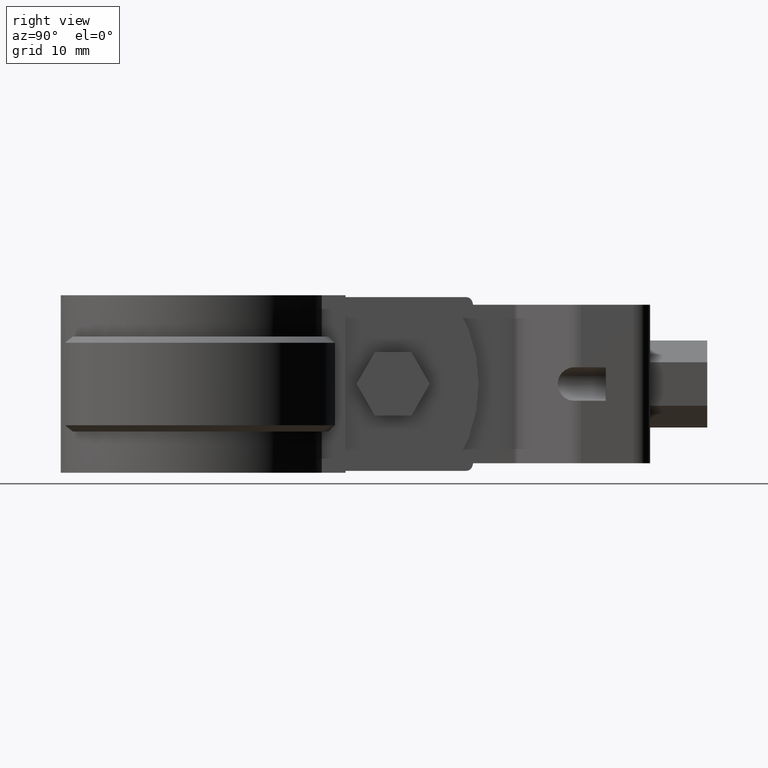
[diagram: clean part render]
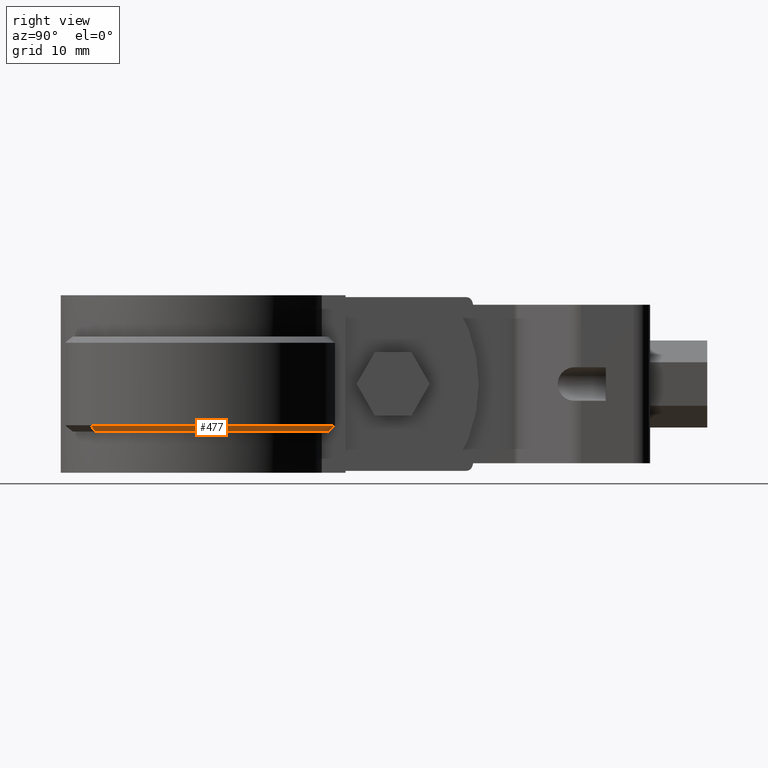
[diagram: same view with one face highlighted and labeled with its STEP entity id]
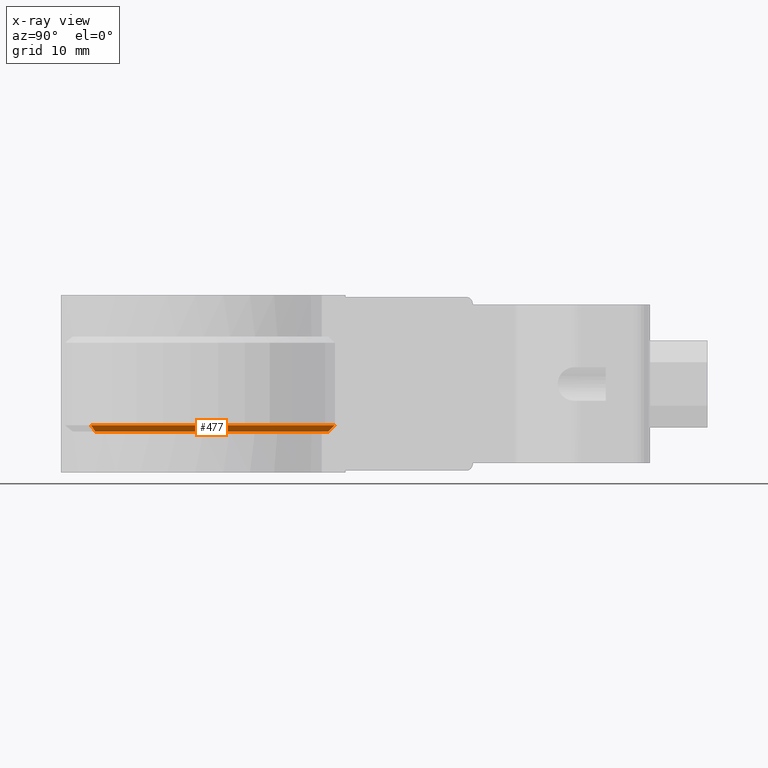
[diagram: x-ray of the same camera — body ghosted, the highlighted face saturated]
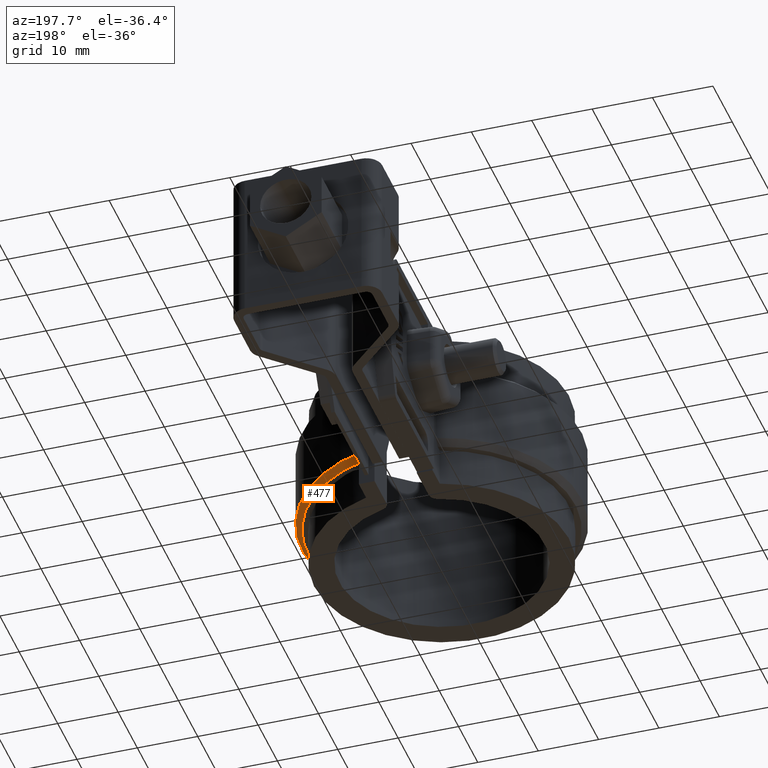
[diagram: same view with one face highlighted and labeled with its STEP entity id]
A machine part, right view. The second image highlights one B-rep face of the part: STEP entity #477.
The next image is the same camera in x-ray: the body ghosted, the highlighted face saturated — about 0% of this face is hidden behind the body in this view.
A second angle (auxiliary view) of the same face is appended — the face is thin or edge-on in the first view.
In plain terms, the highlighted conical surface has half-angle 45 deg.
Its self-contained STEP definition (entity closure, byte-faithful):
#477 = ADVANCED_FACE( '', ( #931 ), #932, .T. );
#931 = FACE_OUTER_BOUND( '', #2024, .T. );
#932 = CONICAL_SURFACE( '', #2025, 22.0950000000000, 0.785398163397448 );
#2024 = EDGE_LOOP( '', ( #4556, #4557, #4558, #4559 ) );
#2025 = AXIS2_PLACEMENT_3D( '', #4560, #4561, #4562 );
#4556 = ORIENTED_EDGE( '', *, *, #6706, .F. );
#4557 = ORIENTED_EDGE( '', *, *, #6644, .F. );
#4558 = ORIENTED_EDGE( '', *, *, #6713, .F. );
#4559 = ORIENTED_EDGE( '', *, *, #6674, .F. );
#4560 = CARTESIAN_POINT( '', ( -8.67361737988404E-016, -6.93889390390723E-015, -20.0000000000000 ) );
#4561 = DIRECTION( '', ( 0.000000000000000, 0.000000000000000, 1.00000000000000 ) );
#4562 = DIRECTION( '', ( 1.00000000000000, 0.000000000000000, 0.000000000000000 ) );
#6644 = EDGE_CURVE( '', #7773, #7768, #7775, .T. );
#6674 = EDGE_CURVE( '', #7823, #7824, #7825, .F. );
#6706 = EDGE_CURVE( '', #7768, #7823, #7864, .F. );
#6713 = EDGE_CURVE( '', #7824, #7773, #7872, .T. );
#7768 = VERTEX_POINT( '', #10865 );
#7773 = VERTEX_POINT( '', #10871 );
#7775 = CIRCLE( '', #10874, 23.0950000000000 );
#7823 = VERTEX_POINT( '', #10947 );
#7824 = VERTEX_POINT( '', #10948 );
#7825 = CIRCLE( '', #10949, 22.0950000000000 );
#7864 = B_SPLINE_CURVE_WITH_KNOTS( '', 3, ( #11049, #11050, #11051, #11052 ), .UNSPECIFIED., .F., .F., ( 4, 4 ), ( 707.130334014854, 707.131788933457 ), .UNSPECIFIED. );
#7872 = LINE( '', #11067, #11068 );
#10865 = CARTESIAN_POINT( '', ( 6.09999999999997, 22.2748518513592, -19.0000000000000 ) );
#10871 = CARTESIAN_POINT( '', ( 16.4128629004502, -16.2479831490258, -19.0000000000000 ) );
#10874 = AXIS2_PLACEMENT_3D( '', #12837, #12838, #12839 );
#10947 = CARTESIAN_POINT( '', ( 6.09999999999997, 21.2362667387656, -20.0000000000000 ) );
#10948 = CARTESIAN_POINT( '', ( 15.7021955308702, -15.5444549763033, -20.0000000000000 ) );
#10949 = AXIS2_PLACEMENT_3D( '', #12886, #12887, #12888 );
#11049 = CARTESIAN_POINT( '', ( 6.09999999999997, 21.2362667387874, -19.9999999999790 ) );
#11050 = CARTESIAN_POINT( '', ( 6.09999999999997, 21.5827481550315, -19.6669847578253 ) );
#11051 = CARTESIAN_POINT( '', ( 6.09999999999997, 21.9289303497818, -19.3336371595513 ) );
#11052 = CARTESIAN_POINT( '', ( 6.09999999999997, 22.2748518513811, -18.9999999999789 ) );
#11067 = CARTESIAN_POINT( '', ( 15.7021955308702, -15.5444549763033, -20.0000000000000 ) );
#11068 = VECTOR( '', #12946, 1000.00000000000 );
#12837 = CARTESIAN_POINT( '', ( -8.67361737988404E-016, -6.93889390390723E-015, -19.0000000000000 ) );
#12838 = DIRECTION( '', ( 0.000000000000000, 0.000000000000000, 1.00000000000000 ) );
#12839 = DIRECTION( '', ( 1.00000000000000, 0.000000000000000, 0.000000000000000 ) );
#12886 = CARTESIAN_POINT( '', ( -8.67361737988404E-016, -6.93889390390723E-015, -20.0000000000000 ) );
#12887 = DIRECTION( '', ( 0.000000000000000, 0.000000000000000, 1.00000000000000 ) );
#12888 = DIRECTION( '', ( 1.00000000000000, 0.000000000000000, 0.000000000000000 ) );
#12946 = DIRECTION( '', ( 0.502517716198026, -0.497469541687851, 0.707106781186547 ) );